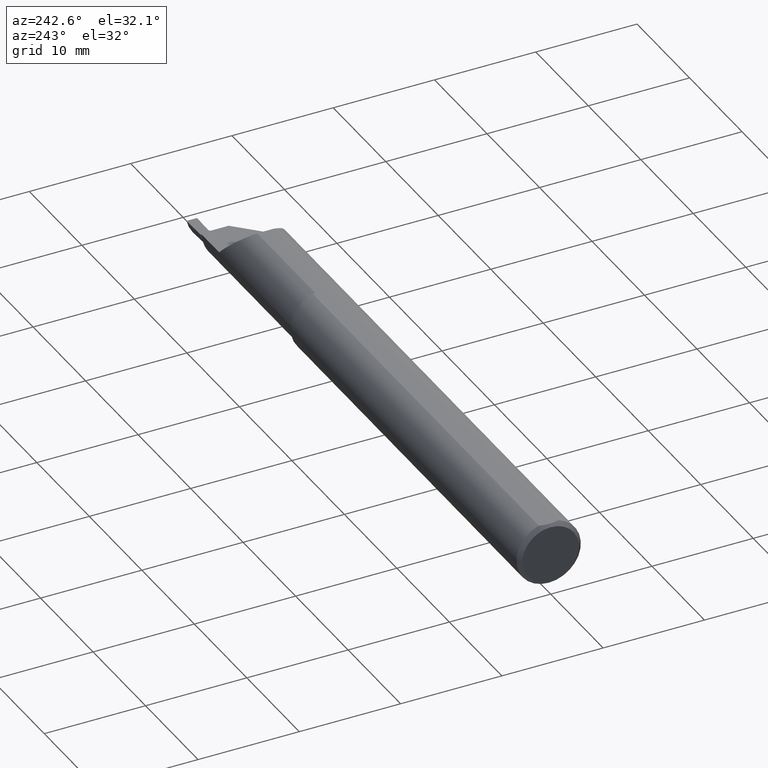
[diagram: clean part render]
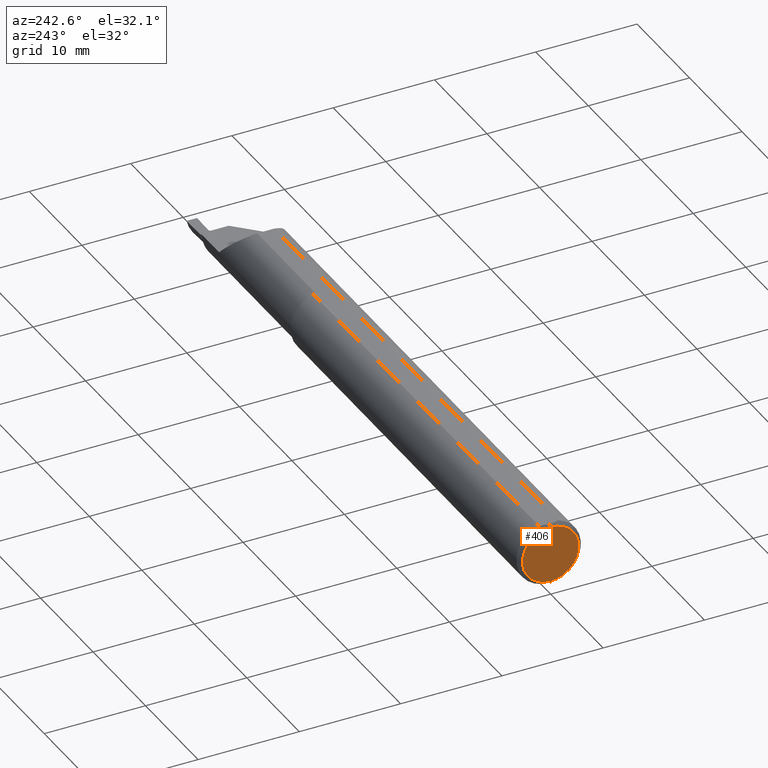
[diagram: same view with one face highlighted and labeled with its STEP entity id]
A machine part, auxiliary view. The second image highlights one B-rep face of the part: STEP entity #406.
In plain terms, the highlighted planar face has unit normal (1, 0, 0).
Its self-contained STEP definition (entity closure, byte-faithful):
#56 = AXIS2_PLACEMENT_3D ( 'NONE', #514, #109, #114 ) ;
#84 = EDGE_CURVE ( 'NONE', #288, #207, #826, .T. ) ;
#109 = DIRECTION ( 'NONE',  ( -1.000000000000000000, -0.000000000000000000, -0.000000000000000000 ) ) ;
#114 = DIRECTION ( 'NONE',  ( 0.000000000000000000, 0.000000000000000000, -1.000000000000000000 ) ) ;
#168 = AXIS2_PLACEMENT_3D ( 'NONE', #394, #325, #469 ) ;
#207 = VERTEX_POINT ( 'NONE', #405 ) ;
#277 = CARTESIAN_POINT ( 'NONE',  ( 0.000000000000000000, 0.000000000000000000, -0.1098499999999999199 ) ) ;
#288 = VERTEX_POINT ( 'NONE', #277 ) ;
#325 = DIRECTION ( 'NONE',  ( -1.000000000000000000, -0.000000000000000000, -0.000000000000000000 ) ) ;
#342 = AXIS2_PLACEMENT_3D ( 'NONE', #534, #789, #850 ) ;
#350 = EDGE_LOOP ( 'NONE', ( #702, #502 ) ) ;
#369 = FACE_OUTER_BOUND ( 'NONE', #350, .T. ) ;
#394 = CARTESIAN_POINT ( 'NONE',  ( 0.000000000000000000, 0.000000000000000000, 0.000000000000000000 ) ) ;
#405 = CARTESIAN_POINT ( 'NONE',  ( 0.000000000000000000, 1.437123018799418518E-17, 0.1098499999999999199 ) ) ;
#406 = ADVANCED_FACE ( 'NONE', ( #369 ), #531, .F. ) ;
#469 = DIRECTION ( 'NONE',  ( 0.000000000000000000, 0.000000000000000000, -1.000000000000000000 ) ) ;
#502 = ORIENTED_EDGE ( 'NONE', *, *, #585, .T. ) ;
#514 = CARTESIAN_POINT ( 'NONE',  ( 0.000000000000000000, 0.000000000000000000, 0.000000000000000000 ) ) ;
#531 = PLANE ( 'NONE',  #342 ) ;
#534 = CARTESIAN_POINT ( 'NONE',  ( 0.000000000000000000, 0.000000000000000000, 0.000000000000000000 ) ) ;
#585 = EDGE_CURVE ( 'NONE', #207, #288, #841, .T. ) ;
#702 = ORIENTED_EDGE ( 'NONE', *, *, #84, .T. ) ;
#789 = DIRECTION ( 'NONE',  ( 1.000000000000000000, 0.000000000000000000, 0.000000000000000000 ) ) ;
#826 = CIRCLE ( 'NONE', #56, 0.1098499999999999199 ) ;
#841 = CIRCLE ( 'NONE', #168, 0.1098499999999999199 ) ;
#850 = DIRECTION ( 'NONE',  ( 0.000000000000000000, 0.000000000000000000, -1.000000000000000000 ) ) ;